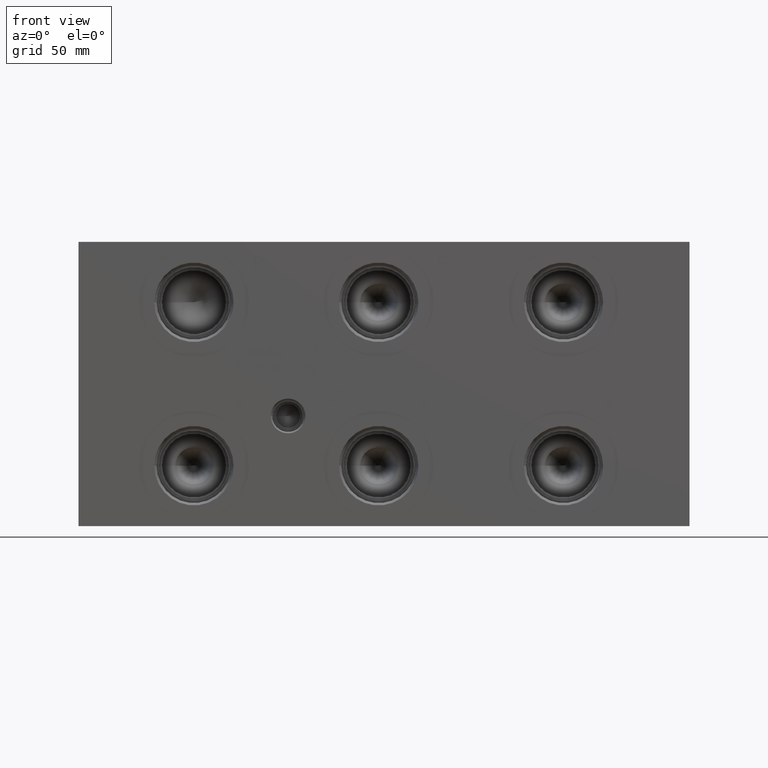
[diagram: clean part render]
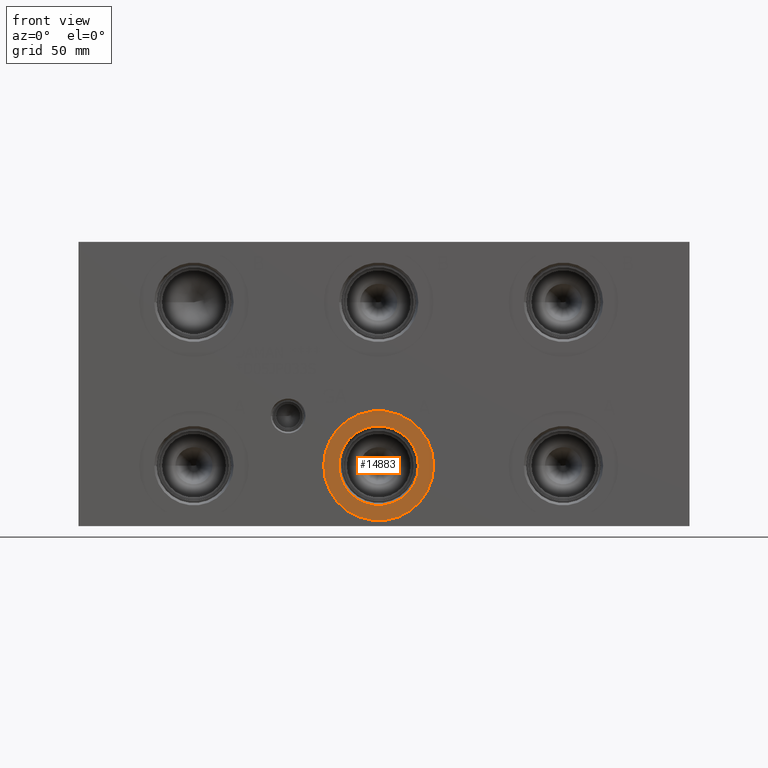
[diagram: same view with one face highlighted and labeled with its STEP entity id]
A machine part, front view. The second image highlights one B-rep face of the part: STEP entity #14883.
In plain terms, the highlighted planar face has unit normal (0, -1, 0).
Its self-contained STEP definition (entity closure, byte-faithful):
#405=CIRCLE('',#15685,24.5618);
#406=CIRCLE('',#15686,24.5618);
#407=CIRCLE('',#15687,17.7546);
#678=FACE_BOUND('',#2826,.T.);
#1962=FACE_OUTER_BOUND('',#2825,.T.);
#2825=EDGE_LOOP('',(#12673,#12674));
#2826=EDGE_LOOP('',(#12675));
#6823=VERTEX_POINT('',#25429);
#6824=VERTEX_POINT('',#25430);
#6825=VERTEX_POINT('',#25433);
#8842=EDGE_CURVE('',#6823,#6824,#405,.T.);
#8843=EDGE_CURVE('',#6824,#6823,#406,.T.);
#8844=EDGE_CURVE('',#6825,#6825,#407,.T.);
#12673=ORIENTED_EDGE('',*,*,#8842,.T.);
#12674=ORIENTED_EDGE('',*,*,#8843,.T.);
#12675=ORIENTED_EDGE('',*,*,#8844,.F.);
#13672=PLANE('',#15684);
#14883=ADVANCED_FACE('',(#1962,#678),#13672,.T.);
#15684=AXIS2_PLACEMENT_3D('',#25428,#18543,#18544);
#15685=AXIS2_PLACEMENT_3D('',#25431,#18545,#18546);
#15686=AXIS2_PLACEMENT_3D('',#25432,#18547,#18548);
#15687=AXIS2_PLACEMENT_3D('',#25434,#18549,#18550);
#18543=DIRECTION('center_axis',(0.,-1.,0.));
#18544=DIRECTION('ref_axis',(1.,0.,0.));
#18545=DIRECTION('center_axis',(0.,-1.,0.));
#18546=DIRECTION('ref_axis',(1.,0.,0.));
#18547=DIRECTION('center_axis',(0.,-1.,0.));
#18548=DIRECTION('ref_axis',(1.,0.,0.));
#18549=DIRECTION('center_axis',(0.,-1.,0.));
#18550=DIRECTION('ref_axis',(1.,0.,0.));
#25428=CARTESIAN_POINT('Origin',(134.1374,0.7874,27.0002));
#25429=CARTESIAN_POINT('',(158.6992,0.7874,27.0002));
#25430=CARTESIAN_POINT('',(109.5756,0.7874,27.0002));
#25431=CARTESIAN_POINT('Origin',(134.1374,0.7874,27.0002));
#25432=CARTESIAN_POINT('Origin',(134.1374,0.7874,27.0002));
#25433=CARTESIAN_POINT('',(116.3828,0.7874,27.0002));
#25434=CARTESIAN_POINT('Origin',(134.1374,0.7874,27.0002));